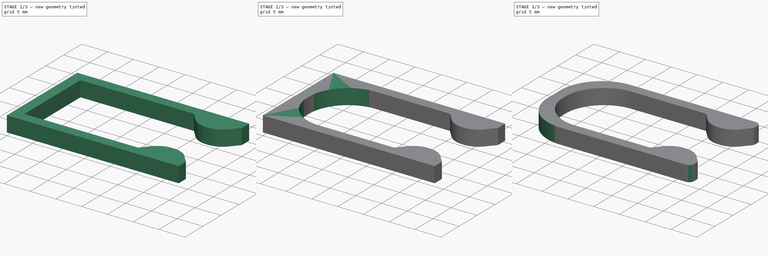
[diagram: build sequence overview — one tinted view per stage of 3, left to right]
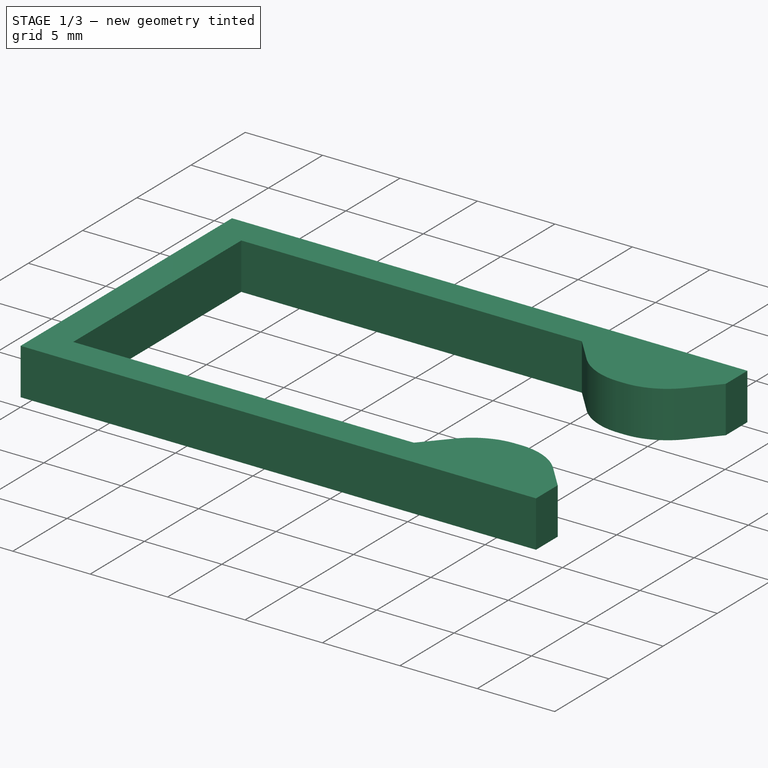
[diagram: stage 1 of 3 — iso view after this stage's code; geometry added in this stage tinted green]
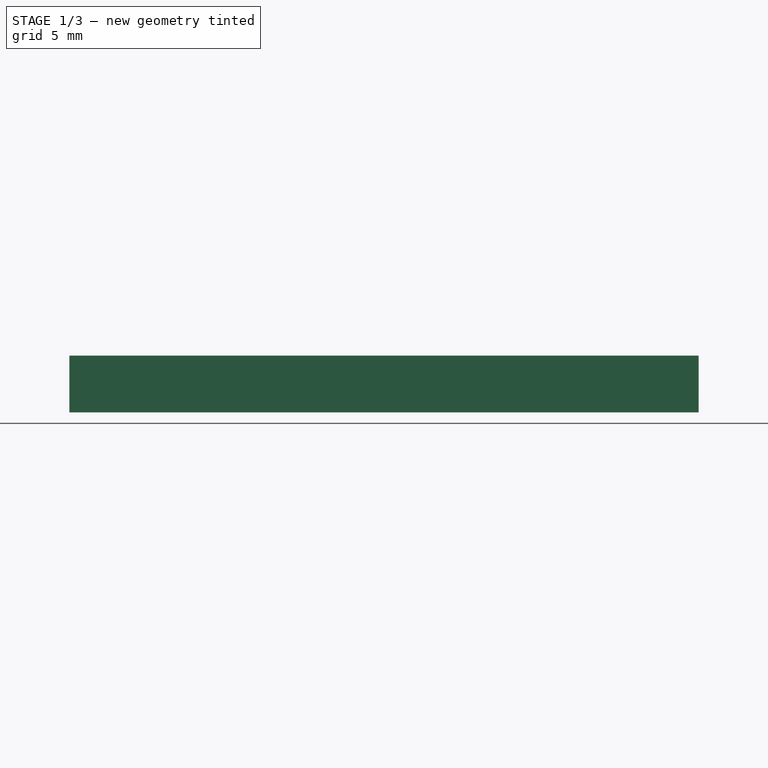
[diagram: stage 1 of 3 — front view after this stage's code; geometry added in this stage tinted green]
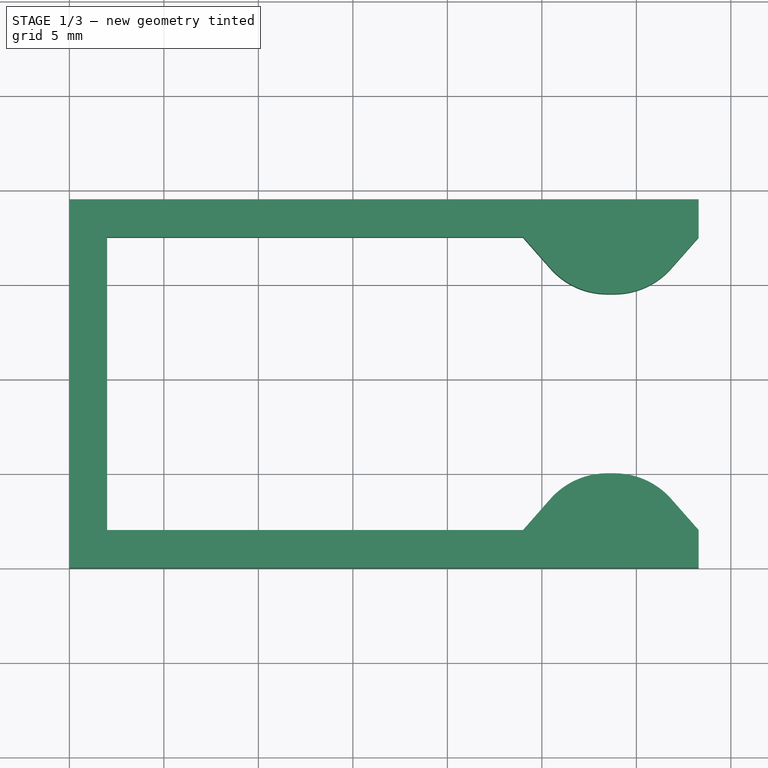
[diagram: stage 1 of 3 — top view after this stage's code; geometry added in this stage tinted green]
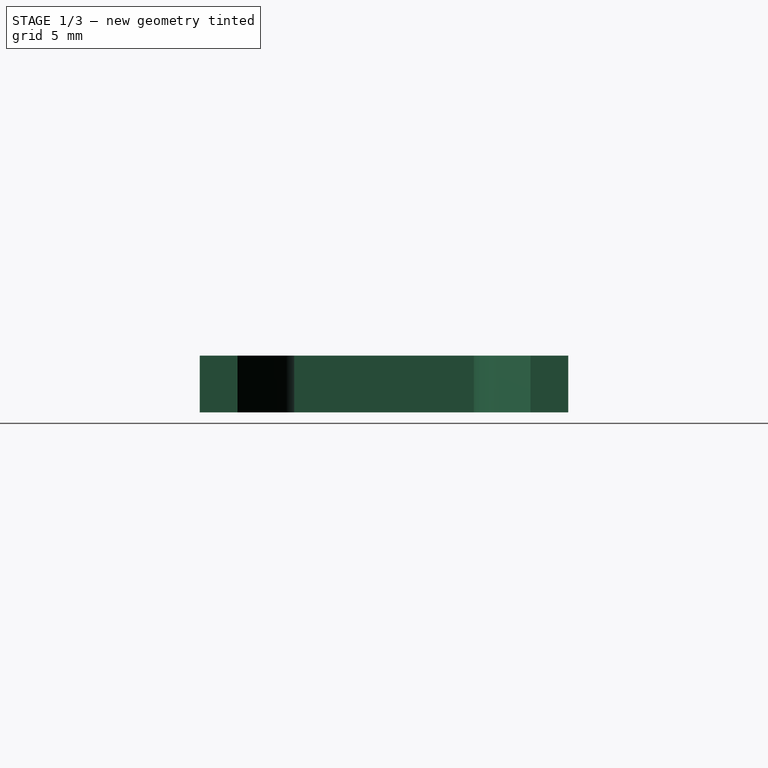
[diagram: stage 1 of 3 — right view after this stage's code; geometry added in this stage tinted green]
FCSTD DOCUMENT  (FreeCAD 0.19R24291 (Git))
Label: clip-test-2
License: All rights reserved
LicenseURL: http://en.wikipedia.org/wiki/All_rights_reserved
objects: Part::Fillet×4, Sketcher::SketchObject×1, PartDesign::Pad×1, PartDesign::Body×1
note: 8 computed .brp shape members not serialized (recipe doc carries the construction recipe); baked Part::Feature solids carry a one-line shape summary decoded from their .brp

FEATURE [Sketcher::SketchObject] Sketch
  FullyConstrained = true
  MapMode = 5
  Support = -> [XY_Plane]
  sketch-geometry (14):
    g0: LineSegment StartX=0 StartY=0 StartZ=0 EndX=33.2915 EndY=0 EndZ=0
    g1: LineSegment StartX=33.2915 StartY=0 StartZ=0 EndX=33.2915 EndY=2 EndZ=0
    g2: LineSegment StartX=33.2915 StartY=2 StartZ=0 EndX=30.6458 EndY=5 EndZ=0
    g3: LineSegment StartX=30.6458 StartY=5 StartZ=0 EndX=26.6458 EndY=5 EndZ=0
    g4: LineSegment StartX=26.6458 StartY=5 StartZ=0 EndX=24 EndY=2 EndZ=0
    g5: LineSegment StartX=24 StartY=2 StartZ=0 EndX=2 EndY=2 EndZ=0
    g6: LineSegment StartX=2 StartY=2 StartZ=0 EndX=2 EndY=17.5 EndZ=0
    g7: LineSegment StartX=2 StartY=17.5 StartZ=0 EndX=24 EndY=17.5 EndZ=0
    g8: LineSegment StartX=24 StartY=17.5 StartZ=0 EndX=26.6458 EndY=14.5 EndZ=0
    g9: LineSegment StartX=26.6458 StartY=14.5 StartZ=0 EndX=30.6458 EndY=14.5 EndZ=0
    g10: LineSegment StartX=30.6458 StartY=14.5 StartZ=0 EndX=33.2915 EndY=17.5 EndZ=0
    g11: LineSegment StartX=33.2915 StartY=17.5 StartZ=0 EndX=33.2915 EndY=19.5 EndZ=0
    g12: LineSegment StartX=33.2915 StartY=19.5 StartZ=0 EndX=0 EndY=19.5 EndZ=0
    g13: LineSegment StartX=0 StartY=19.5 StartZ=0 EndX=0 EndY=0 EndZ=0
  constraints (41):
    c: Coincident(g-1,g0)
    c: PointOnObject(g0,g-1)
    c: Coincident(g0,g1)
    c: Vertical(g1)
    c: Coincident(g1,g2)
    c: Coincident(g2,g3)
    c: Horizontal(g3)
    c: Coincident(g3,g4)
    c: Coincident(g4,g5)
    c: Horizontal(g5)
    c: Coincident(g5,g6)
    c: Vertical(g6)
    c: Coincident(g6,g7)
    c: Horizontal(g7)
    c: Coincident(g7,g8)
    c: Coincident(g8,g9)
    c: Horizontal(g9)
    c: Coincident(g9,g10)
    c: Coincident(g10,g11)
    c: Vertical(g11)
    c: Coincident(g11,g12)
    c: PointOnObject(g12,g-2)
    c: Horizontal(g12)
    c: Coincident(g12,g13)
    c: Coincident(g13,g0)
    c: Equal(g4,g2)
    c: Equal(g8,g10)
    c: Equal(g1,g11)
    c: Equal(g9,g3)
    c: Equal(g8,g4)
    c: Equal(g7,g5)
    c: DistanceY(g7,g10) = 0
    c: DistanceY(g4,g1) = 0
    c: DistanceY(g10,g11) = 2
    c: DistanceX(g3,g2) = 4
    c: Distance(g2,g1) = 4
    c: Equal(g12,g0)
    c: DistanceY(g2,g9) = 9.5
    c: DistanceY(g5,g6) = 15.5
    c: DistanceX(g6,g7) = 22
    c: DistanceX(g12,g6) = 2
FEATURE [PartDesign::Pad] Pad
  Direction = (1,1,1)
  Length = 3
  Length2 = 100
  Profile = -> Sketch
  Type = 0
FEATURE [PartDesign::Body] Body
  Group = -> [Sketch,Pad]
  Origin = -> Origin
  Tip = -> Pad
FEATURE [Part::Fillet] Fillet
  Base = -> Pad
  Edges = 4 edges r=4: [Edge8,Edge11,Edge26,Edge29]
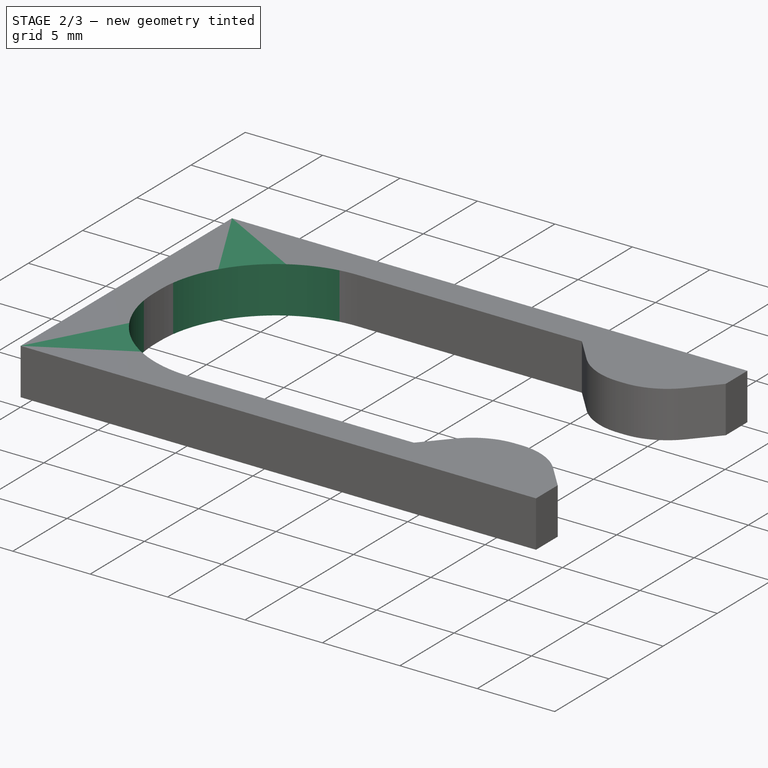
[diagram: stage 2 of 3 — iso view after this stage's code; geometry added in this stage tinted green]
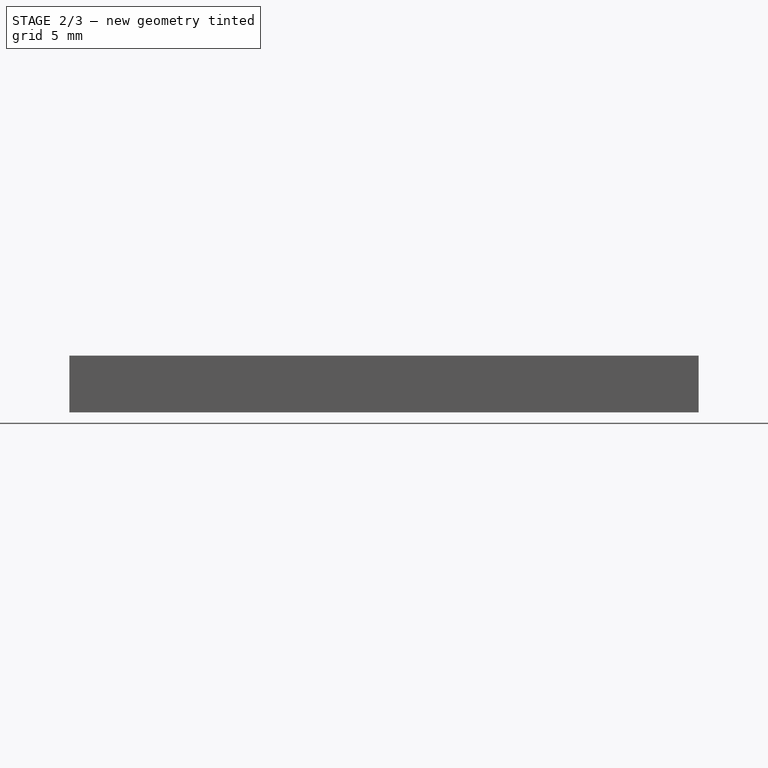
[diagram: stage 2 of 3 — front view after this stage's code; geometry added in this stage tinted green]
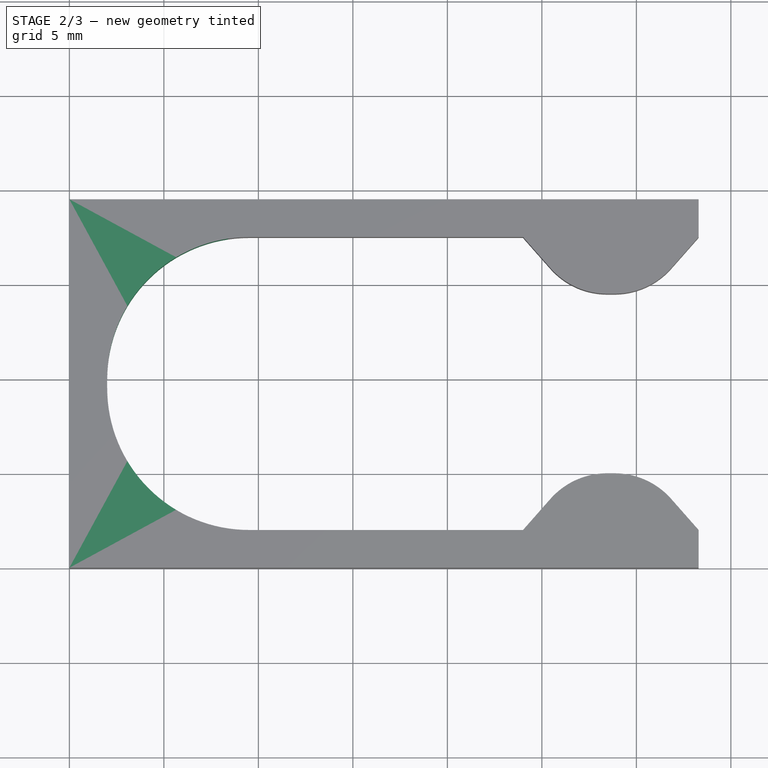
[diagram: stage 2 of 3 — top view after this stage's code; geometry added in this stage tinted green]
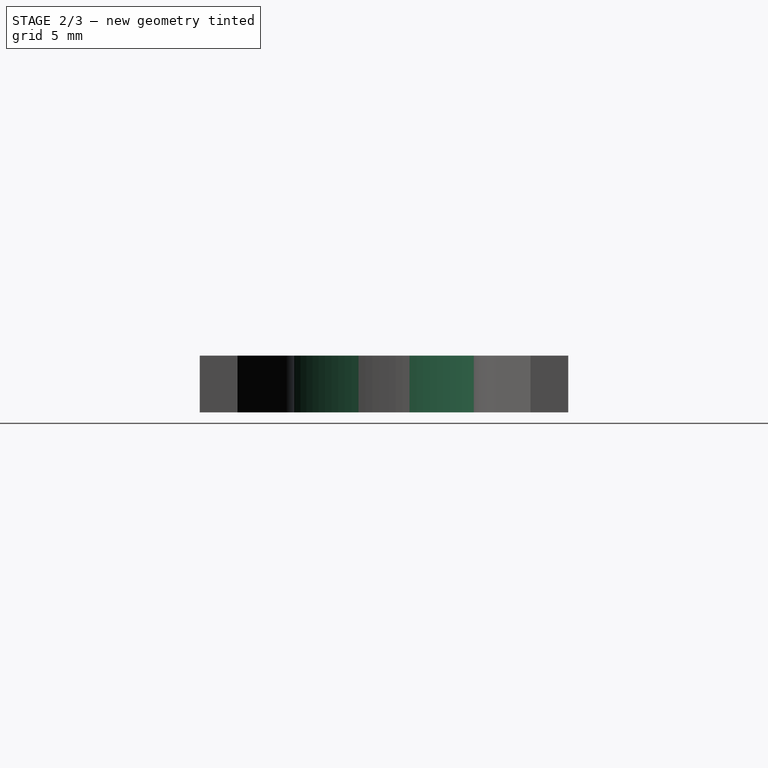
[diagram: stage 2 of 3 — right view after this stage's code; geometry added in this stage tinted green]
FEATURE [Part::Fillet] Fillet001
  Base = -> Fillet
  Edges = 2 edges r=7.5: [Edge47,Edge49]
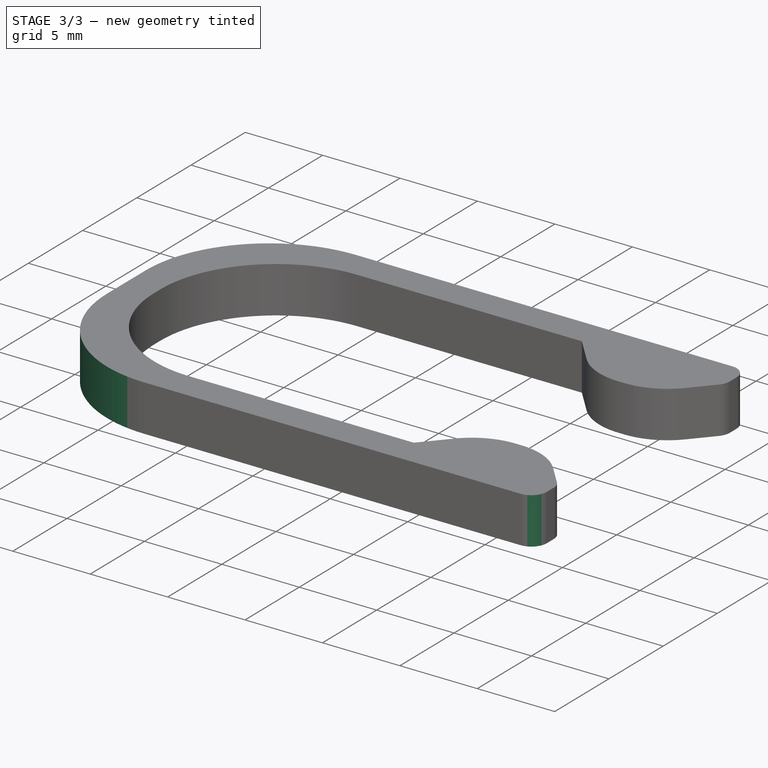
[diagram: stage 3 of 3 — iso view after this stage's code; geometry added in this stage tinted green]
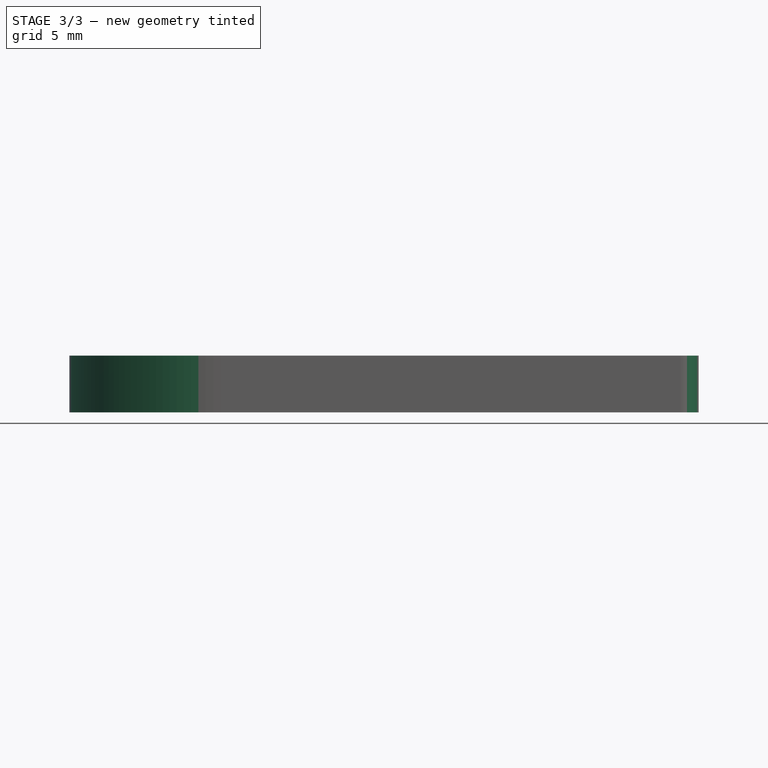
[diagram: stage 3 of 3 — front view after this stage's code; geometry added in this stage tinted green]
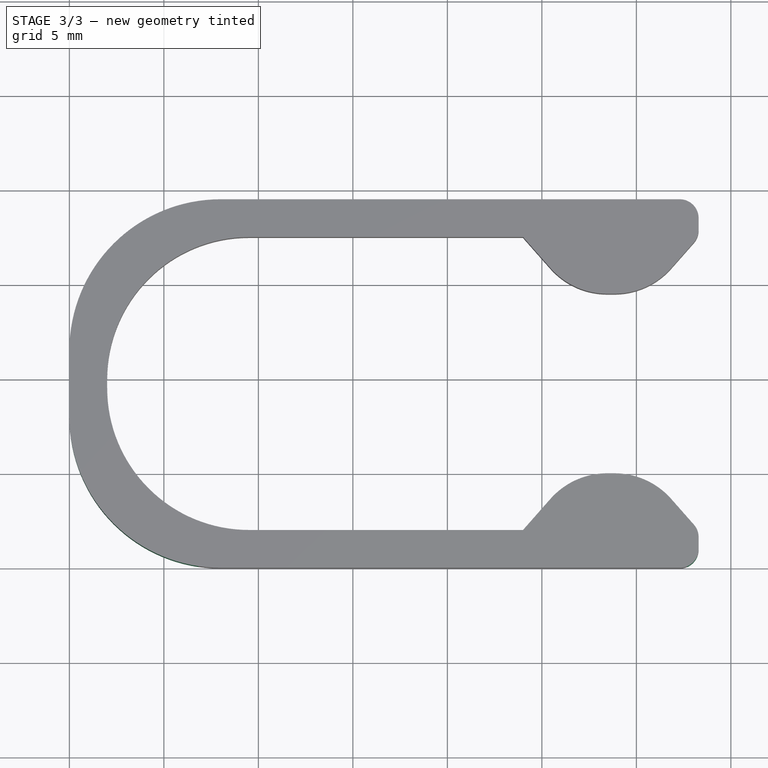
[diagram: stage 3 of 3 — top view after this stage's code; geometry added in this stage tinted green]
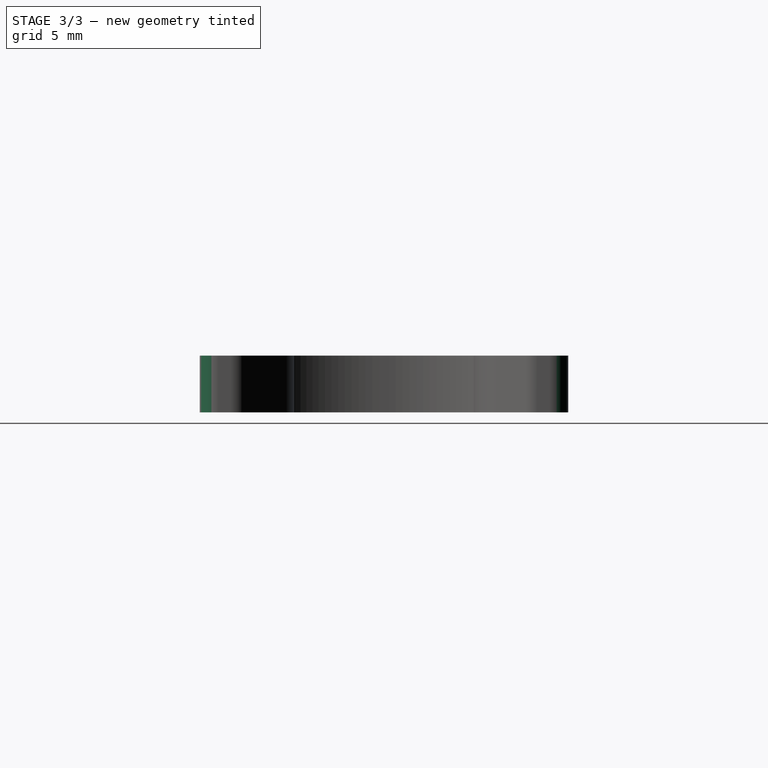
[diagram: stage 3 of 3 — right view after this stage's code; geometry added in this stage tinted green]
FEATURE [Part::Fillet] Fillet002
  Base = -> Fillet001
  Edges = 2 edges r=8: [Edge50,Edge54]
FEATURE [Part::Fillet] Fillet003
  Base = -> Fillet002
  Edges = 4 edges r=2: [Edge25,Edge28,Edge39,Edge43]
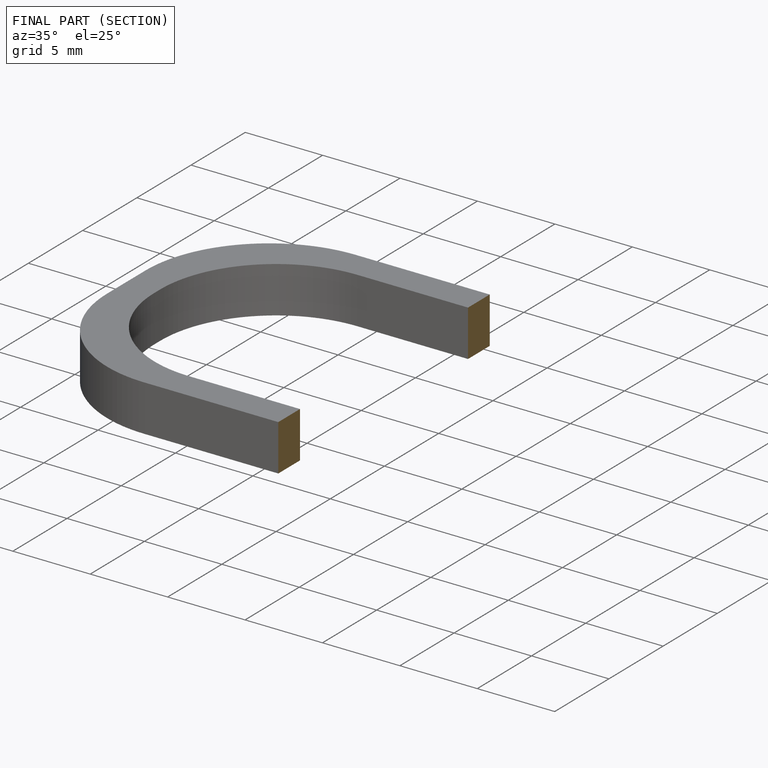
[diagram: finished part — half-section view (interior)]
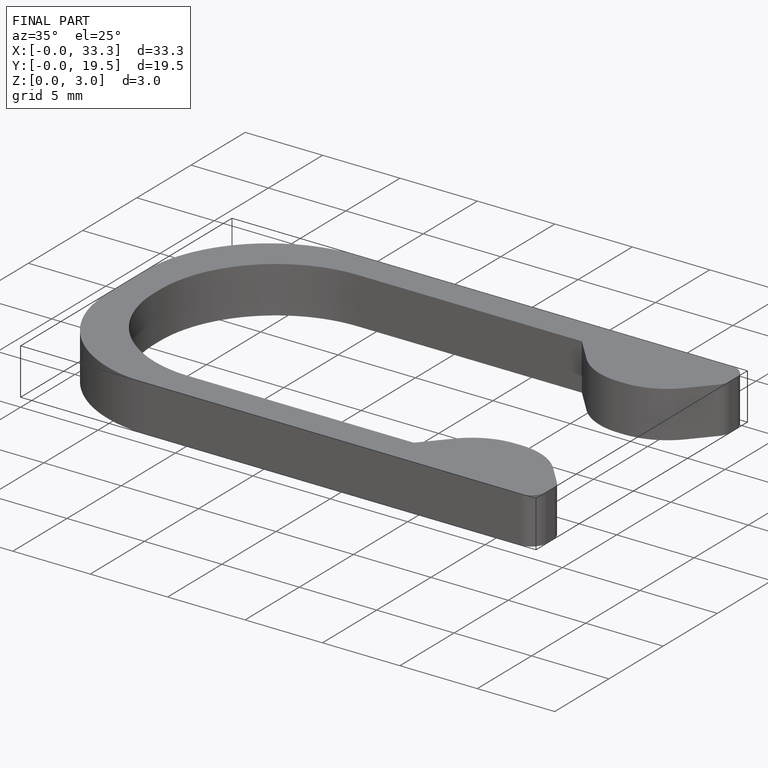
[diagram: finished part — iso view with bounding-box wireframe]
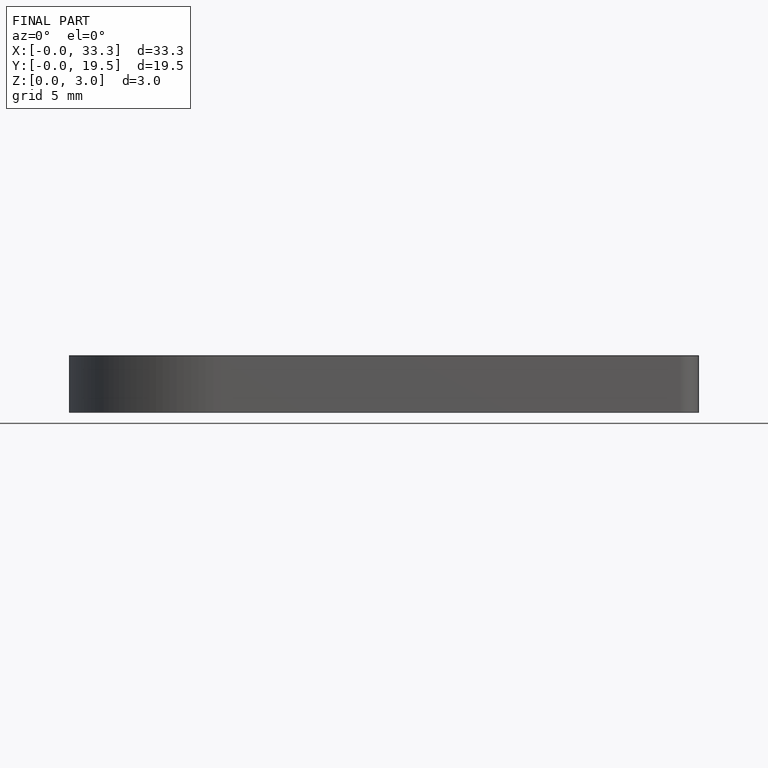
[diagram: finished part — front view with bounding-box wireframe]
